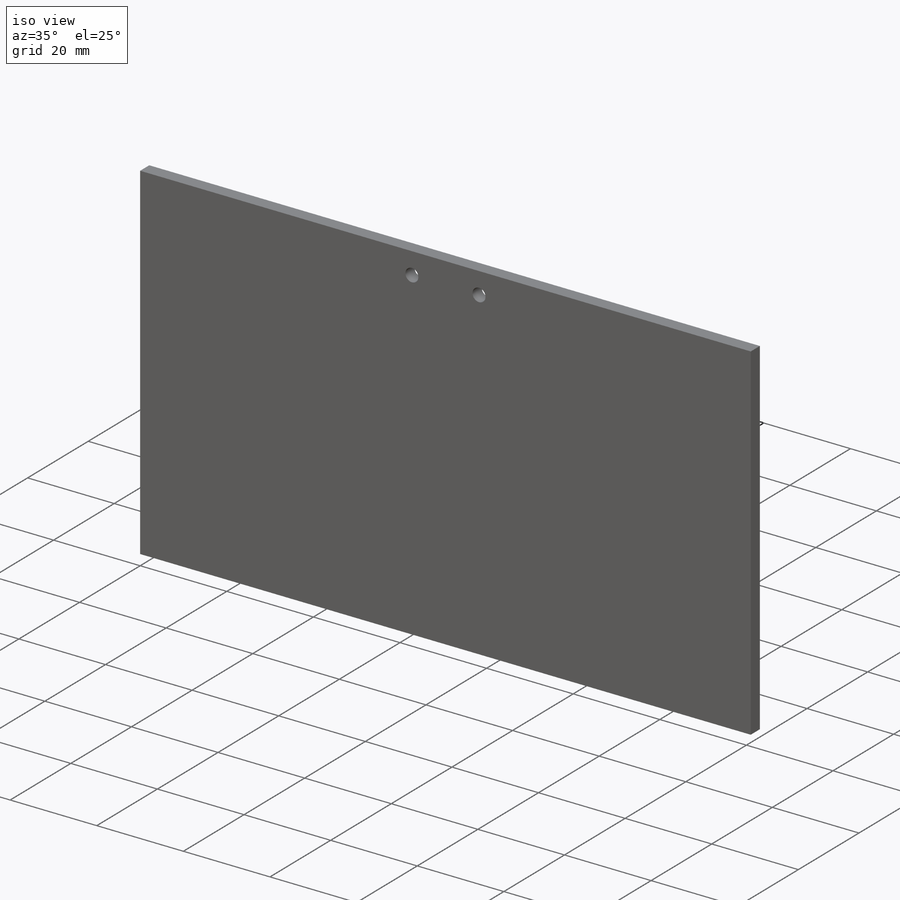
[diagram: iso view]
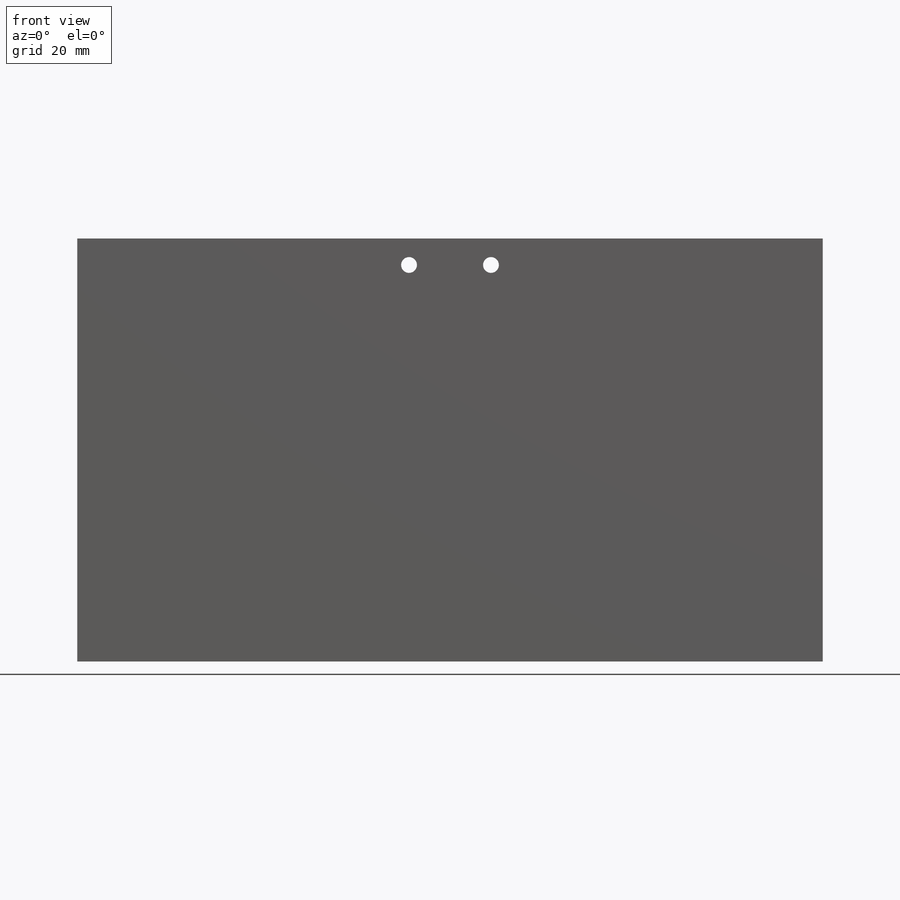
[diagram: front view]
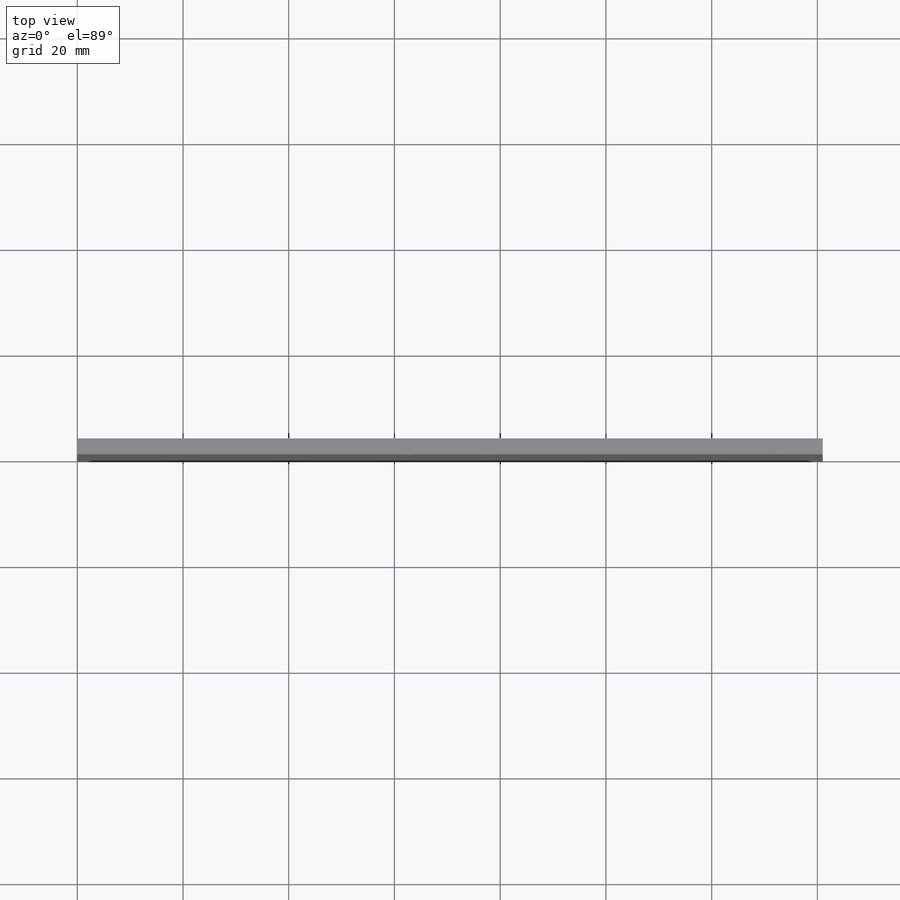
[diagram: top view]
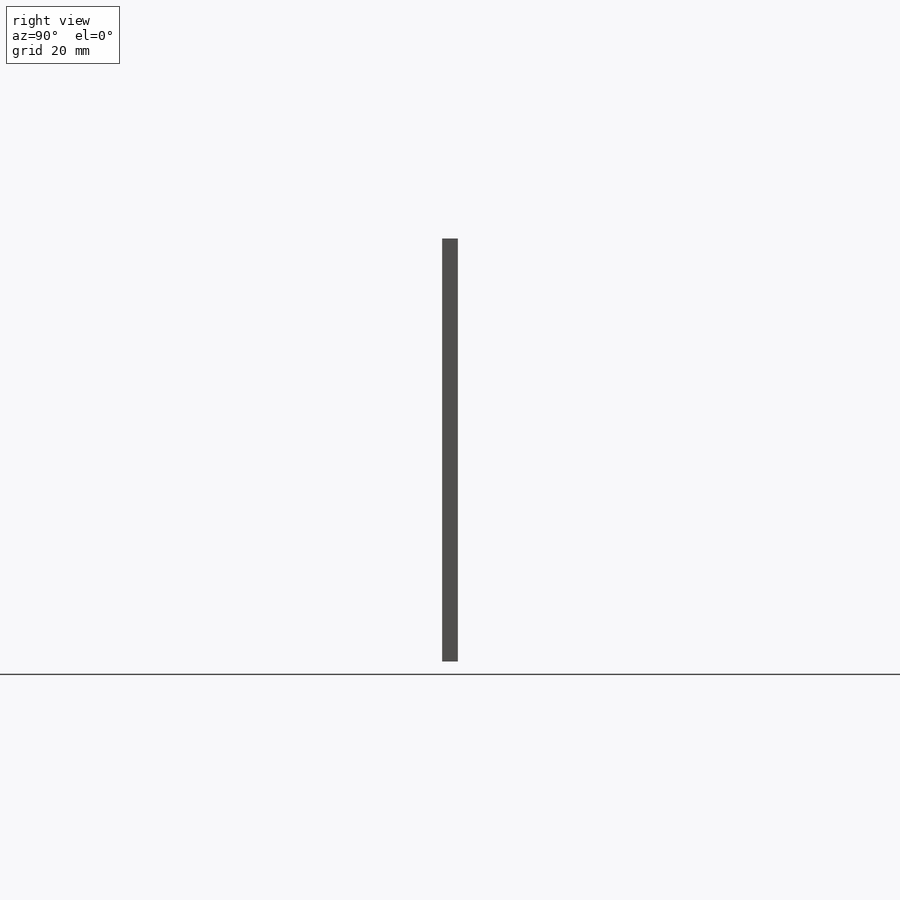
[diagram: right view]
SOLIDWORKS PART (.sldprt)
format: sldprt  version: not decoded by parser v0  size: 165,888 bytes
history: native  units: mm
features: sketch x4, plane x3, material x1, extrude x1, cut_extrude x1 + 2 further entries (+8 scaffold rows collapsed)
feature tree (20):
  scaffold x8  (default folders/planes/origin — collapsed)
  material  "ｱｸﾘﾙ (中-上級の耐衝撃性)"
  "ｻｰﾌｪｽ ﾎﾞﾃﾞｨ"
  "ｿﾘｯﾄﾞ ﾎﾞﾃﾞｨ"
  plane  "正面"
  plane  "平面"
  plane  "右側面"
  sketch  "ｽｹｯﾁ1"  dims[D1=80.0mm D2=141.0mm]
  extrude  "ﾎﾞｽ - 押し出し1"  Depth=3mm
  sketch  "ｽｹｯﾁ2"  dims[c1.D2=3.0mm c1.D3=3.0mm c1.D4=3.0mm c1.D5=3.0mm c1.D1=5.0mm c2.D2=141.0mm c2.D4=7.75mm c2.D5=7.75mm]
  cut_extrude  "ｶｯﾄ - 押し出し1"  [1 undecoded]
  sketch  "ｽｹｯﾁ3"  dims[D1=35.5mm D2=35.5mm]
  sketch  "ｽｹｯﾁ4"  dims[c1.D1=35.5mm c1.D2=3.0mm c2.D2=~4.545224deg c2.D1=35.5mm]
decode coverage: 5 of 6 modeling features carry decoded parameters; 2 rows unclassified (native names shown)
note: ~ marks probable driven/reference dimensions
note: 1 parameter value undecoded
note: suppression state not decoded; provenance and decode notes live in map.json
